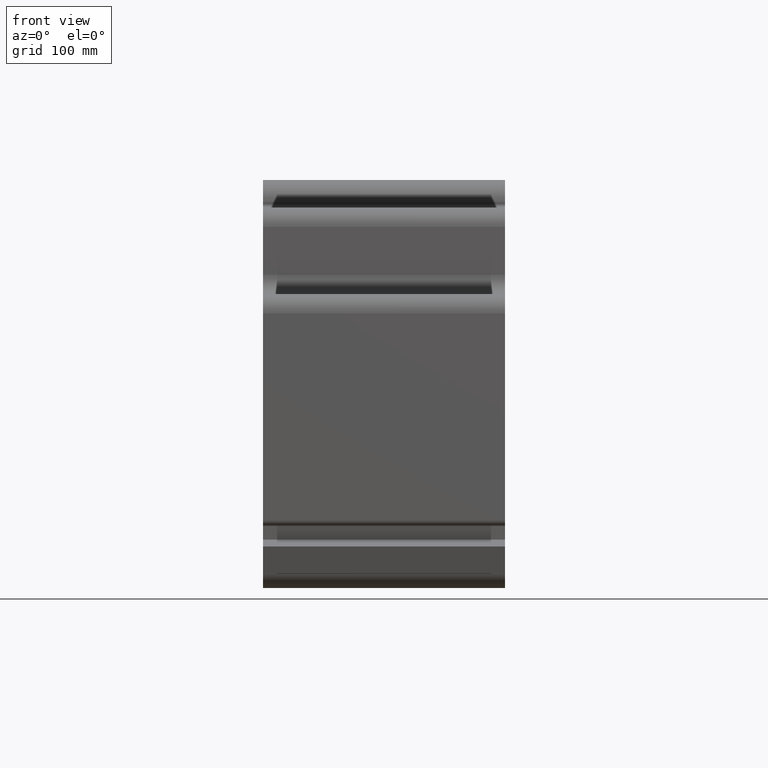
[diagram: clean part render]
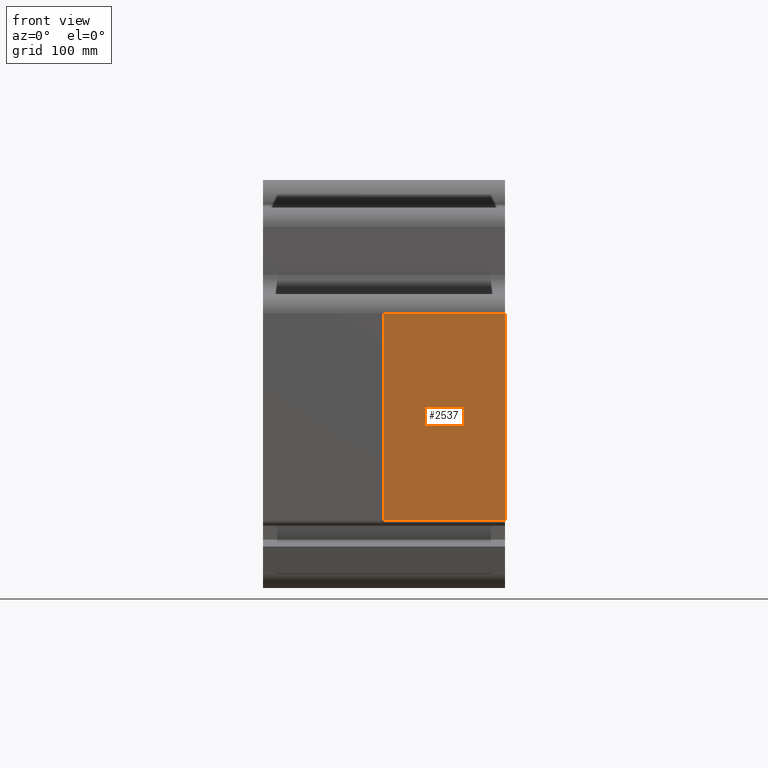
[diagram: same view with one face highlighted and labeled with its STEP entity id]
A machine part, front view. The second image highlights one B-rep face of the part: STEP entity #2537.
In plain terms, the highlighted planar face has unit normal (0, -1, 0).
Its self-contained STEP definition (entity closure, byte-faithful):
#2479=CARTESIAN_POINT('',(350.00000000000057,-568.20000000000027,47.999999999999972));
#2480=VERTEX_POINT('',#2479);
#2488=CARTESIAN_POINT('',(175.00000000000028,-568.20000000000027,47.999999999999972));
#2489=VERTEX_POINT('',#2488);
#2490=CARTESIAN_POINT('',(175.00000000000028,-568.20000000000027,47.999999999999972));
#2491=DIRECTION('',(1.0,0.0,0.0));
#2492=VECTOR('',#2491,175.00000000000028);
#2493=LINE('',#2490,#2492);
#2494=EDGE_CURVE('',#2489,#2480,#2493,.T.);
#2507=CARTESIAN_POINT('',(175.00000000000028,-568.20000000000027,47.999999999999972));
#2508=DIRECTION('',(0.0,-1.0,0.0));
#2509=DIRECTION('',(0.0,0.0,-1.0));
#2510=AXIS2_PLACEMENT_3D('',#2507,#2508,#2509);
#2511=PLANE('',#2510);
#2512=CARTESIAN_POINT('',(350.00000000000057,-568.20000000000005,346.99999999999994));
#2513=VERTEX_POINT('',#2512);
#2514=CARTESIAN_POINT('',(350.00000000000057,-568.20000000000027,47.999999999999972));
#2515=DIRECTION('',(0.0,0.0,1.0));
#2516=VECTOR('',#2515,299.0);
#2517=LINE('',#2514,#2516);
#2518=EDGE_CURVE('',#2480,#2513,#2517,.T.);
#2519=ORIENTED_EDGE('',*,*,#2518,.T.);
#2520=CARTESIAN_POINT('',(175.00000000000028,-568.20000000000005,346.99999999999994));
#2521=VERTEX_POINT('',#2520);
#2522=CARTESIAN_POINT('',(175.00000000000028,-568.20000000000005,346.99999999999994));
#2523=DIRECTION('',(1.0,0.0,0.0));
#2524=VECTOR('',#2523,175.00000000000028);
#2525=LINE('',#2522,#2524);
#2526=EDGE_CURVE('',#2521,#2513,#2525,.T.);
#2527=ORIENTED_EDGE('',*,*,#2526,.F.);
#2528=CARTESIAN_POINT('',(175.00000000000028,-568.20000000000027,47.999999999999972));
#2529=DIRECTION('',(0.0,0.0,1.0));
#2530=VECTOR('',#2529,299.0);
#2531=LINE('',#2528,#2530);
#2532=EDGE_CURVE('',#2489,#2521,#2531,.T.);
#2533=ORIENTED_EDGE('',*,*,#2532,.F.);
#2534=ORIENTED_EDGE('',*,*,#2494,.T.);
#2535=EDGE_LOOP('',(#2519,#2527,#2533,#2534));
#2536=FACE_OUTER_BOUND('',#2535,.T.);
#2537=ADVANCED_FACE('',(#2536),#2511,.T.);